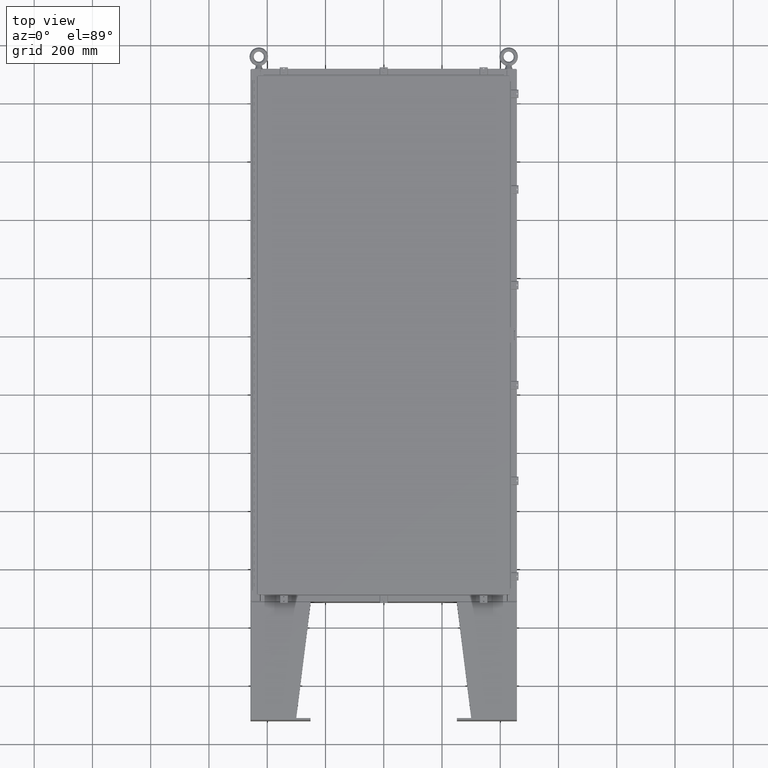
[diagram: clean part render]
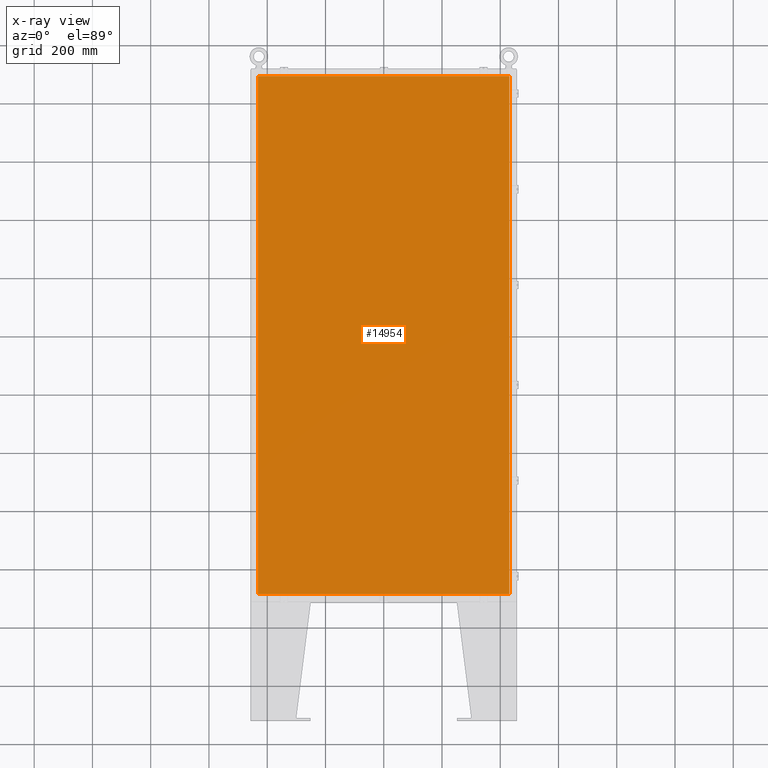
[diagram: x-ray — body ghosted, one internal face saturated and labeled with its STEP entity id]
A machine part, top view, then the same camera in x-ray: the body is ghosted and one INTERNAL B-rep face — a face not visible from any outside direction — is saturated and labeled: STEP entity #14954.
In plain terms, the highlighted planar face has unit normal (0, 0, -1).
Its self-contained STEP definition (entity closure, byte-faithful):
#870 = VERTEX_POINT ( 'NONE', #74729 ) ;
#1718 = ORIENTED_EDGE ( 'NONE', *, *, #58164, .F. ) ;
#3339 = LINE ( 'NONE', #59541, #48601 ) ;
#6671 = EDGE_CURVE ( 'NONE', #64955, #24212, #65283, .T. ) ;
#7724 = CARTESIAN_POINT ( 'NONE',  ( -16.99030000000000500, -35.00630000000001000, -0.07469999999999804600 ) ) ;
#8383 = VECTOR ( 'NONE', #16670, 39.37007874015748100 ) ;
#8616 = PLANE ( 'NONE',  #76338 ) ;
#10811 = CARTESIAN_POINT ( 'NONE',  ( 16.99029999999999800, 35.00630000000001000, -0.07469999999999804600 ) ) ;
#13058 = CARTESIAN_POINT ( 'NONE',  ( 0.0000000000000000000, 0.0000000000000000000, -0.07470000000000000300 ) ) ;
#14954 = ADVANCED_FACE ( 'NONE', ( #44591 ), #8616, .T. ) ;
#16670 = DIRECTION ( 'NONE',  ( -1.000000000000000000, -0.0000000000000000000, -0.0000000000000000000 ) ) ;
#17918 = VECTOR ( 'NONE', #54747, 39.37007874015748100 ) ;
#22756 = ORIENTED_EDGE ( 'NONE', *, *, #6671, .F. ) ;
#24212 = VERTEX_POINT ( 'NONE', #24998 ) ;
#24998 = CARTESIAN_POINT ( 'NONE',  ( 16.99029999999999800, 35.00630000000000300, -0.07470000000000000300 ) ) ;
#25847 = CARTESIAN_POINT ( 'NONE',  ( 16.99029999999999800, -35.00630000000000300, -0.07470000000000019700 ) ) ;
#27702 = EDGE_CURVE ( 'NONE', #36774, #870, #3339, .T. ) ;
#29527 = DIRECTION ( 'NONE',  ( 0.0000000000000000000, 0.0000000000000000000, -1.000000000000000000 ) ) ;
#29878 = DIRECTION ( 'NONE',  ( 0.0000000000000000000, -1.000000000000000000, 0.0000000000000000000 ) ) ;
#36774 = VERTEX_POINT ( 'NONE', #62584 ) ;
#39537 = EDGE_LOOP ( 'NONE', ( #22756, #1718, #60031, #59222 ) ) ;
#39644 = EDGE_CURVE ( 'NONE', #24212, #36774, #39656, .T. ) ;
#39656 = LINE ( 'NONE', #10811, #8383 ) ;
#40263 = DIRECTION ( 'NONE',  ( -1.000000000000000000, 0.0000000000000000000, -0.0000000000000000000 ) ) ;
#44591 = FACE_OUTER_BOUND ( 'NONE', #39537, .T. ) ;
#48601 = VECTOR ( 'NONE', #29878, 39.37007874015748100 ) ;
#50859 = VECTOR ( 'NONE', #54739, 39.37007874015748100 ) ;
#54739 = DIRECTION ( 'NONE',  ( 1.000000000000000000, -0.0000000000000000000, -0.0000000000000000000 ) ) ;
#54747 = DIRECTION ( 'NONE',  ( 0.0000000000000000000, 1.000000000000000000, 0.0000000000000000000 ) ) ;
#58164 = EDGE_CURVE ( 'NONE', #870, #64955, #68533, .T. ) ;
#59222 = ORIENTED_EDGE ( 'NONE', *, *, #39644, .F. ) ;
#59541 = CARTESIAN_POINT ( 'NONE',  ( -16.99029999999999800, 35.00630000000000300, -0.07469999999999582500 ) ) ;
#60031 = ORIENTED_EDGE ( 'NONE', *, *, #27702, .F. ) ;
#62584 = CARTESIAN_POINT ( 'NONE',  ( -16.99029999999999800, 35.00630000000000300, -0.07470000000000000300 ) ) ;
#64955 = VERTEX_POINT ( 'NONE', #76409 ) ;
#65283 = LINE ( 'NONE', #25847, #17918 ) ;
#68533 = LINE ( 'NONE', #7724, #50859 ) ;
#74729 = CARTESIAN_POINT ( 'NONE',  ( -16.99030000000000500, -35.00630000000001000, -0.07470000000000000300 ) ) ;
#76338 = AXIS2_PLACEMENT_3D ( 'NONE', #13058, #29527, #40263 ) ;
#76409 = CARTESIAN_POINT ( 'NONE',  ( 16.99029999999999800, -35.00630000000001000, -0.07470000000000000300 ) ) ;